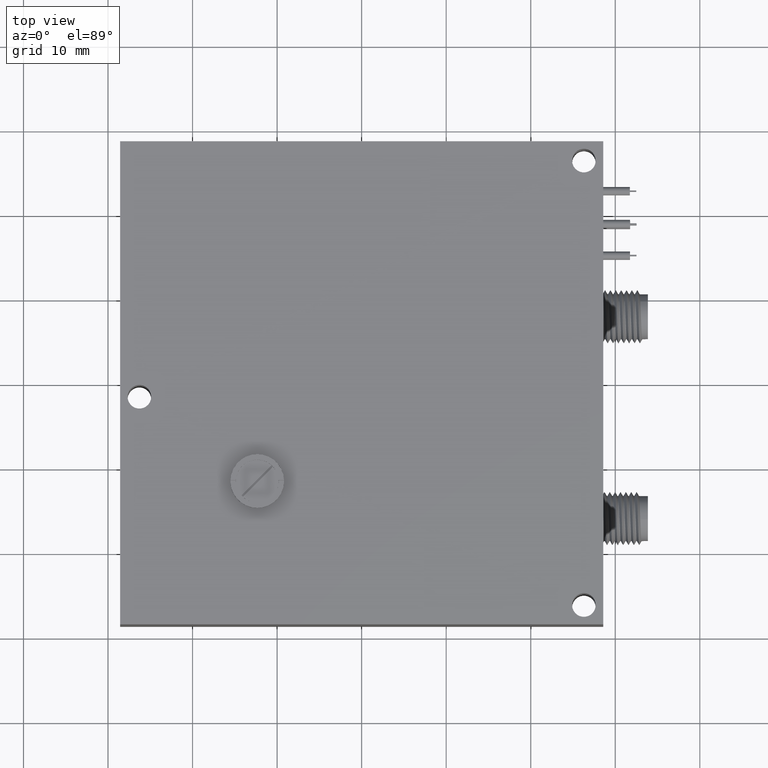
[diagram: clean part render]
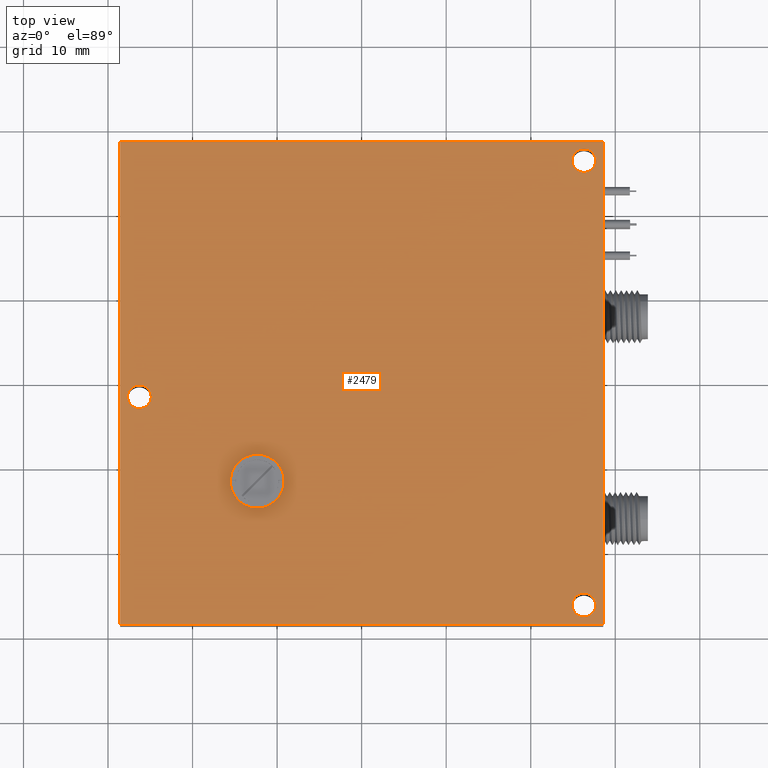
[diagram: same view with one face highlighted and labeled with its STEP entity id]
A machine part, top view. The second image highlights one B-rep face of the part: STEP entity #2479.
In plain terms, the highlighted planar face has unit normal (0, 0, -1).
Its self-contained STEP definition (entity closure, byte-faithful):
#88 = VECTOR ( 'NONE', #10500, 39.37007874015748100 ) ;
#185 = EDGE_LOOP ( 'NONE', ( #4548, #4658 ) ) ;
#520 = DIRECTION ( 'NONE',  ( 1.000000000000000000, 0.0000000000000000000, 0.0000000000000000000 ) ) ;
#554 = LINE ( 'NONE', #3053, #88 ) ;
#890 = FACE_OUTER_BOUND ( 'NONE', #3624, .T. ) ;
#967 = VERTEX_POINT ( 'NONE', #6646 ) ;
#1694 = AXIS2_PLACEMENT_3D ( 'NONE', #7346, #10102, #7197 ) ;
#1844 = DIRECTION ( 'NONE',  ( -0.0000000000000000000, -1.000000000000000000, -0.0000000000000000000 ) ) ;
#1882 = FACE_BOUND ( 'NONE', #7789, .T. ) ;
#1924 = AXIS2_PLACEMENT_3D ( 'NONE', #3556, #6173, #6331 ) ;
#2107 = EDGE_CURVE ( 'NONE', #967, #4415, #7153, .T. ) ;
#2317 = EDGE_CURVE ( 'NONE', #10069, #4660, #7571, .T. ) ;
#2407 = ORIENTED_EDGE ( 'NONE', *, *, #5900, .T. ) ;
#2479 = ADVANCED_FACE ( 'NONE', ( #11061, #4398, #1882, #890 ), #4504, .F. ) ;
#2562 = LINE ( 'NONE', #7308, #3734 ) ;
#2681 = ORIENTED_EDGE ( 'NONE', *, *, #2107, .T. ) ;
#2698 = CARTESIAN_POINT ( 'NONE',  ( 1.125000000000000000, -1.125000000000000200, 0.6700000000000000400 ) ) ;
#2903 = CARTESIAN_POINT ( 'NONE',  ( -0.9800000000000003200, -0.06500000000000026600, 0.6700000000000000400 ) ) ;
#3043 = ORIENTED_EDGE ( 'NONE', *, *, #3564, .F. ) ;
#3053 = CARTESIAN_POINT ( 'NONE',  ( 1.125000000000000000, 1.124999999999999800, 0.6700000000000000400 ) ) ;
#3243 = CARTESIAN_POINT ( 'NONE',  ( -1.089999999999999400, -0.06500000000000025200, 0.6700000000000000400 ) ) ;
#3424 = DIRECTION ( 'NONE',  ( -0.0000000000000000000, -0.0000000000000000000, 1.000000000000000000 ) ) ;
#3556 = CARTESIAN_POINT ( 'NONE',  ( -1.034999999999999900, -0.06500000000000026600, 0.6700000000000000400 ) ) ;
#3564 = EDGE_CURVE ( 'NONE', #10844, #3662, #10976, .T. ) ;
#3624 = EDGE_LOOP ( 'NONE', ( #2681, #9672, #2407, #4964 ) ) ;
#3662 = VERTEX_POINT ( 'NONE', #4378 ) ;
#3734 = VECTOR ( 'NONE', #1844, 39.37007874015748100 ) ;
#3745 = CIRCLE ( 'NONE', #4787, 0.05499999999999954900 ) ;
#3820 = EDGE_LOOP ( 'NONE', ( #3043, #10498 ) ) ;
#3903 = ORIENTED_EDGE ( 'NONE', *, *, #5049, .F. ) ;
#3945 = EDGE_CURVE ( 'NONE', #11474, #9093, #8497, .T. ) ;
#4141 = CARTESIAN_POINT ( 'NONE',  ( 1.034999999999999300, 1.034999999999999900, 0.6700000000000000400 ) ) ;
#4332 = EDGE_CURVE ( 'NONE', #4660, #10069, #11867, .T. ) ;
#4378 = CARTESIAN_POINT ( 'NONE',  ( 0.9800000000000004300, -1.034999999999999900, 0.6700000000000000400 ) ) ;
#4398 = FACE_BOUND ( 'NONE', #3820, .T. ) ;
#4415 = VERTEX_POINT ( 'NONE', #4464 ) ;
#4464 = CARTESIAN_POINT ( 'NONE',  ( -1.125000000000000000, 1.124999999999999800, 0.6700000000000000400 ) ) ;
#4502 = VECTOR ( 'NONE', #11273, 39.37007874015748100 ) ;
#4504 = PLANE ( 'NONE',  #5904 ) ;
#4548 = ORIENTED_EDGE ( 'NONE', *, *, #4332, .F. ) ;
#4658 = ORIENTED_EDGE ( 'NONE', *, *, #2317, .F. ) ;
#4660 = VERTEX_POINT ( 'NONE', #5702 ) ;
#4691 = VECTOR ( 'NONE', #5922, 39.37007874015748100 ) ;
#4787 = AXIS2_PLACEMENT_3D ( 'NONE', #5322, #3424, #9930 ) ;
#4964 = ORIENTED_EDGE ( 'NONE', *, *, #6455, .T. ) ;
#5049 = EDGE_CURVE ( 'NONE', #9093, #11474, #11767, .T. ) ;
#5231 = LINE ( 'NONE', #2698, #4502 ) ;
#5322 = CARTESIAN_POINT ( 'NONE',  ( 1.034999999999999900, -1.034999999999999900, 0.6700000000000000400 ) ) ;
#5405 = DIRECTION ( 'NONE',  ( -0.0000000000000000000, -0.0000000000000000000, 1.000000000000000000 ) ) ;
#5542 = AXIS2_PLACEMENT_3D ( 'NONE', #7247, #5405, #9970 ) ;
#5702 = CARTESIAN_POINT ( 'NONE',  ( 1.089999999999999000, 1.034999999999999900, 0.6700000000000000400 ) ) ;
#5869 = VERTEX_POINT ( 'NONE', #8303 ) ;
#5900 = EDGE_CURVE ( 'NONE', #5869, #11551, #5231, .T. ) ;
#5904 = AXIS2_PLACEMENT_3D ( 'NONE', #6398, #10153, #9106 ) ;
#5922 = DIRECTION ( 'NONE',  ( -1.000000000000000000, -0.0000000000000000000, -0.0000000000000000000 ) ) ;
#6045 = DIRECTION ( 'NONE',  ( -0.0000000000000000000, -0.0000000000000000000, 1.000000000000000000 ) ) ;
#6086 = DIRECTION ( 'NONE',  ( -0.0000000000000000000, -0.0000000000000000000, 1.000000000000000000 ) ) ;
#6132 = CARTESIAN_POINT ( 'NONE',  ( 0.9799999999999997600, 1.034999999999999900, 0.6700000000000000400 ) ) ;
#6173 = DIRECTION ( 'NONE',  ( -0.0000000000000000000, -0.0000000000000000000, 1.000000000000000000 ) ) ;
#6331 = DIRECTION ( 'NONE',  ( 1.000000000000000000, 0.0000000000000000000, 0.0000000000000000000 ) ) ;
#6398 = CARTESIAN_POINT ( 'NONE',  ( 0.0000000000000000000, 0.0000000000000000000, 0.6700000000000000400 ) ) ;
#6455 = EDGE_CURVE ( 'NONE', #11551, #967, #554, .T. ) ;
#6646 = CARTESIAN_POINT ( 'NONE',  ( 1.125000000000000000, 1.124999999999999800, 0.6700000000000000400 ) ) ;
#6769 = CARTESIAN_POINT ( 'NONE',  ( -1.125000000000000000, 1.124999999999999800, 0.6700000000000000400 ) ) ;
#6790 = EDGE_CURVE ( 'NONE', #3662, #10844, #3745, .T. ) ;
#6974 = DIRECTION ( 'NONE',  ( 1.000000000000000000, 0.0000000000000000000, 0.0000000000000000000 ) ) ;
#7153 = LINE ( 'NONE', #6769, #4691 ) ;
#7197 = DIRECTION ( 'NONE',  ( 1.000000000000000000, 0.0000000000000000000, 0.0000000000000000000 ) ) ;
#7247 = CARTESIAN_POINT ( 'NONE',  ( 1.034999999999999300, 1.034999999999999900, 0.6700000000000000400 ) ) ;
#7272 = CARTESIAN_POINT ( 'NONE',  ( 1.089999999999999600, -1.034999999999999900, 0.6700000000000000400 ) ) ;
#7308 = CARTESIAN_POINT ( 'NONE',  ( -1.125000000000000000, -1.125000000000000200, 0.6700000000000000400 ) ) ;
#7346 = CARTESIAN_POINT ( 'NONE',  ( -1.034999999999999900, -0.06500000000000026600, 0.6700000000000000400 ) ) ;
#7571 = CIRCLE ( 'NONE', #8781, 0.05499999999999954900 ) ;
#7777 = EDGE_CURVE ( 'NONE', #4415, #5869, #2562, .T. ) ;
#7789 = EDGE_LOOP ( 'NONE', ( #3903, #8441 ) ) ;
#8150 = CARTESIAN_POINT ( 'NONE',  ( 1.125000000000000000, -1.125000000000000200, 0.6700000000000000400 ) ) ;
#8303 = CARTESIAN_POINT ( 'NONE',  ( -1.125000000000000000, -1.125000000000000200, 0.6700000000000000400 ) ) ;
#8441 = ORIENTED_EDGE ( 'NONE', *, *, #3945, .F. ) ;
#8497 = CIRCLE ( 'NONE', #1924, 0.05499999999999954900 ) ;
#8781 = AXIS2_PLACEMENT_3D ( 'NONE', #4141, #6045, #6974 ) ;
#9093 = VERTEX_POINT ( 'NONE', #2903 ) ;
#9106 = DIRECTION ( 'NONE',  ( -1.000000000000000000, 0.0000000000000000000, -0.0000000000000000000 ) ) ;
#9672 = ORIENTED_EDGE ( 'NONE', *, *, #7777, .T. ) ;
#9930 = DIRECTION ( 'NONE',  ( 1.000000000000000000, 0.0000000000000000000, 0.0000000000000000000 ) ) ;
#9970 = DIRECTION ( 'NONE',  ( 1.000000000000000000, 0.0000000000000000000, 0.0000000000000000000 ) ) ;
#10069 = VERTEX_POINT ( 'NONE', #6132 ) ;
#10102 = DIRECTION ( 'NONE',  ( -0.0000000000000000000, -0.0000000000000000000, 1.000000000000000000 ) ) ;
#10153 = DIRECTION ( 'NONE',  ( 0.0000000000000000000, 0.0000000000000000000, -1.000000000000000000 ) ) ;
#10498 = ORIENTED_EDGE ( 'NONE', *, *, #6790, .F. ) ;
#10500 = DIRECTION ( 'NONE',  ( -0.0000000000000000000, 1.000000000000000000, -0.0000000000000000000 ) ) ;
#10576 = AXIS2_PLACEMENT_3D ( 'NONE', #11657, #6086, #520 ) ;
#10844 = VERTEX_POINT ( 'NONE', #7272 ) ;
#10976 = CIRCLE ( 'NONE', #10576, 0.05499999999999954900 ) ;
#11061 = FACE_BOUND ( 'NONE', #185, .T. ) ;
#11273 = DIRECTION ( 'NONE',  ( 1.000000000000000000, -0.0000000000000000000, -0.0000000000000000000 ) ) ;
#11474 = VERTEX_POINT ( 'NONE', #3243 ) ;
#11551 = VERTEX_POINT ( 'NONE', #8150 ) ;
#11657 = CARTESIAN_POINT ( 'NONE',  ( 1.034999999999999900, -1.034999999999999900, 0.6700000000000000400 ) ) ;
#11767 = CIRCLE ( 'NONE', #1694, 0.05499999999999954900 ) ;
#11867 = CIRCLE ( 'NONE', #5542, 0.05499999999999954900 ) ;